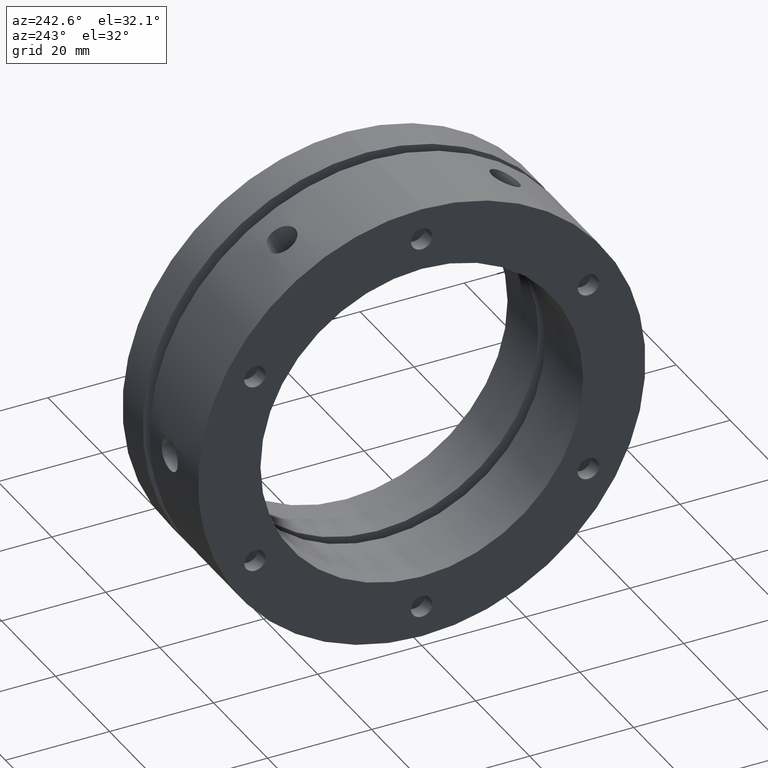
[diagram: clean part render]
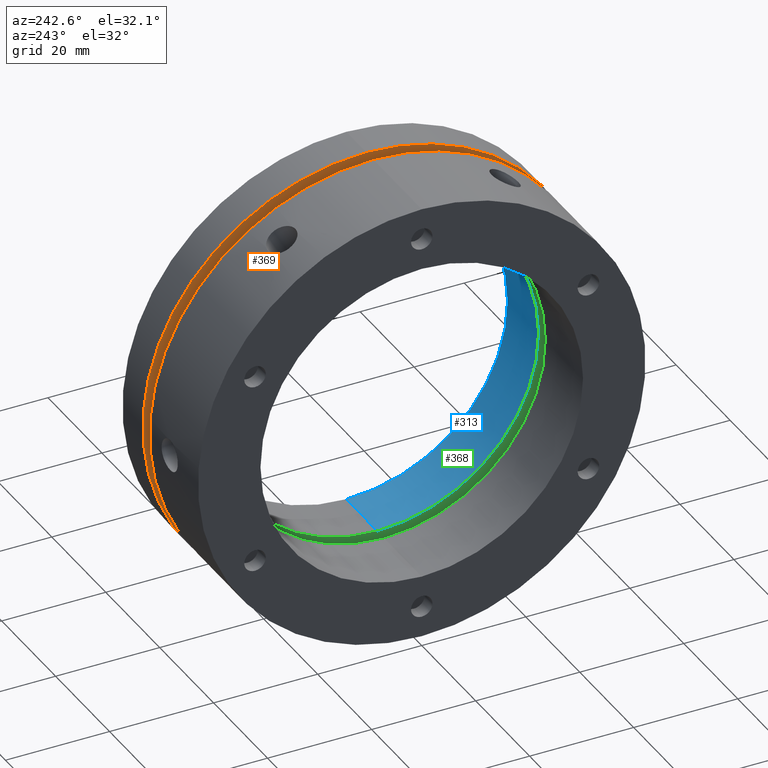
[diagram: same view with three faces highlighted in distinct colors, each labeled with its STEP entity id]
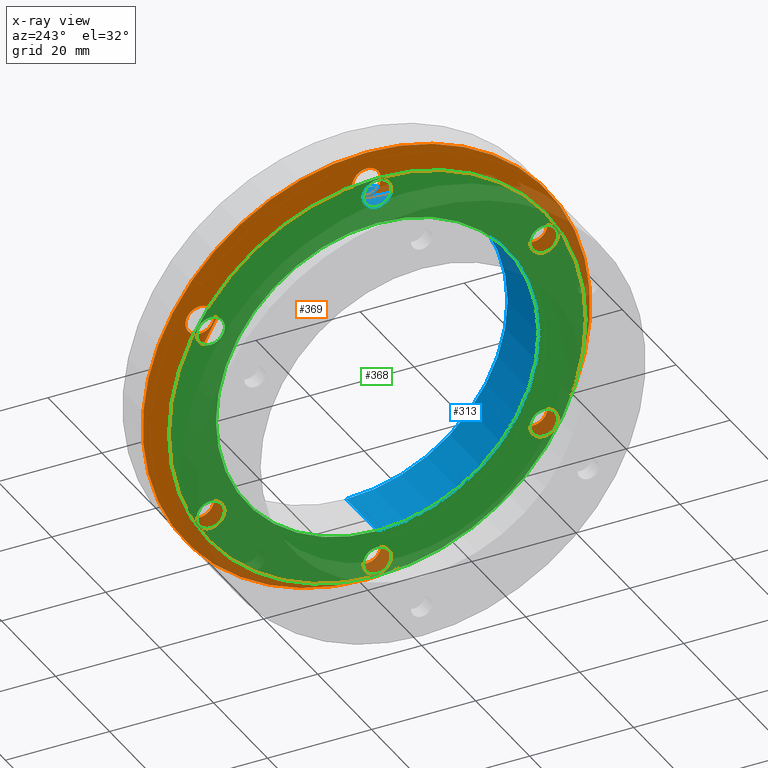
[diagram: x-ray of the same camera — body ghosted, the three highlighted faces saturated]
A machine part, auxiliary view with three faces highlighted in distinct colors.
The next image is the same camera in x-ray (body ghosted, the three faces saturated) — at least one of them is partly hidden behind the body in this view.
Their STEP definitions:

[orange] entity #369 — the highlighted planar face has unit normal (1, 0, 0).
#369 = ADVANCED_FACE ( 'NONE', ( #1775, #1779, #1776, #1778, #1777, #1780, #1781, #1782 ), #985, .F. ) ;
#505 = EDGE_CURVE ( 'NONE', #4217, #4211, #2020, .T. ) ;
#537 = EDGE_CURVE ( 'NONE', #4246, #4247, #2064, .T. ) ;
#541 = EDGE_CURVE ( 'NONE', #4250, #4253, #2073, .T. ) ;
#545 = EDGE_CURVE ( 'NONE', #4254, #4257, #2079, .T. ) ;
#549 = EDGE_CURVE ( 'NONE', #4258, #4261, #2085, .T. ) ;
#553 = EDGE_CURVE ( 'NONE', #4262, #4265, #2091, .T. ) ;
#557 = EDGE_CURVE ( 'NONE', #4266, #4269, #2097, .T. ) ;
#561 = EDGE_CURVE ( 'NONE', #4270, #4273, #2103, .T. ) ;
#982 = DIRECTION ( 'NONE',  ( 1.000000000000000000, -0.0000000000000000000, 0.0000000000000000000 ) ) ;
#984 = CARTESIAN_POINT ( 'NONE',  ( 20.49999999999999300, 38.50000000000000000, 0.0000000000000000000 ) ) ;
#985 = PLANE ( 'NONE',  #4632 ) ;
#987 = DIRECTION ( 'NONE',  ( 0.0000000000000000000, 0.0000000000000000000, -1.000000000000000000 ) ) ;
#1608 = CARTESIAN_POINT ( 'NONE',  ( 20.50000000000000000, 0.0000000000000000000, 0.0000000000000000000 ) ) ;
#1609 = DIRECTION ( 'NONE',  ( -1.000000000000000000, 0.0000000000000000000, 0.0000000000000000000 ) ) ;
#1610 = DIRECTION ( 'NONE',  ( 0.0000000000000000000, 0.0000000000000000000, 1.000000000000000000 ) ) ;
#1687 = CARTESIAN_POINT ( 'NONE',  ( 20.49999999999999300, 0.0000000000000000000, 37.00000000000002800 ) ) ;
#1688 = DIRECTION ( 'NONE',  ( -1.000000000000000000, -0.0000000000000000000, -0.0000000000000000000 ) ) ;
#1689 = DIRECTION ( 'NONE',  ( 0.0000000000000000000, 0.0000000000000000000, -1.000000000000000000 ) ) ;
#1697 = CARTESIAN_POINT ( 'NONE',  ( 20.49999999999999300, -32.04293994002425400, 18.50000000000001800 ) ) ;
#1698 = DIRECTION ( 'NONE',  ( -1.000000000000000000, -0.0000000000000000000, -0.0000000000000000000 ) ) ;
#1699 = DIRECTION ( 'NONE',  ( 0.0000000000000000000, 0.0000000000000000000, -1.000000000000000000 ) ) ;
#1706 = CARTESIAN_POINT ( 'NONE',  ( 20.49999999999999300, -32.04293994002426200, -18.50000000000000700 ) ) ;
#1707 = DIRECTION ( 'NONE',  ( -1.000000000000000000, -0.0000000000000000000, -0.0000000000000000000 ) ) ;
#1708 = DIRECTION ( 'NONE',  ( 0.0000000000000000000, 0.0000000000000000000, -1.000000000000000000 ) ) ;
#1775 = FACE_BOUND ( 'NONE', #4715, .T. ) ;
#1776 = FACE_BOUND ( 'NONE', #4733, .T. ) ;
#1777 = FACE_BOUND ( 'NONE', #4729, .T. ) ;
#1778 = FACE_BOUND ( 'NONE', #4741, .T. ) ;
#1779 = FACE_BOUND ( 'NONE', #4727, .T. ) ;
#1780 = FACE_BOUND ( 'NONE', #4716, .T. ) ;
#1781 = FACE_BOUND ( 'NONE', #4746, .T. ) ;
#1782 = FACE_OUTER_BOUND ( 'NONE', #4745, .T. ) ;
#2020 = CIRCLE ( 'NONE', #4695, 34.00000000000000700 ) ;
#2064 = CIRCLE ( 'NONE', #4711, 2.750000000000002700 ) ;
#2073 = CIRCLE ( 'NONE', #4713, 2.749999999999999100 ) ;
#2079 = CIRCLE ( 'NONE', #2506, 2.749999999999999100 ) ;
#2085 = CIRCLE ( 'NONE', #2508, 2.750000000000002700 ) ;
#2091 = CIRCLE ( 'NONE', #2510, 2.749999999999999100 ) ;
#2097 = CIRCLE ( 'NONE', #2512, 2.749999999999999100 ) ;
#2103 = CIRCLE ( 'NONE', #2514, 42.99999999999999300 ) ;
#2210 = CIRCLE ( 'NONE', #2578, 2.750000000000002700 ) ;
#2244 = CIRCLE ( 'NONE', #2579, 2.749999999999999100 ) ;
#2246 = CIRCLE ( 'NONE', #2577, 2.749999999999999100 ) ;
#2247 = CIRCLE ( 'NONE', #2576, 2.749999999999999100 ) ;
#2249 = CIRCLE ( 'NONE', #2575, 42.99999999999999300 ) ;
#2251 = CIRCLE ( 'NONE', #2581, 2.750000000000002700 ) ;
#2252 = CIRCLE ( 'NONE', #2580, 2.749999999999999100 ) ;
#2261 = CIRCLE ( 'NONE', #2590, 34.00000000000000700 ) ;
#2506 = AXIS2_PLACEMENT_3D ( 'NONE', #1706, #1707, #1708 ) ;
#2508 = AXIS2_PLACEMENT_3D ( 'NONE', #2737, #2738, #2739 ) ;
#2510 = AXIS2_PLACEMENT_3D ( 'NONE', #2747, #2748, #2749 ) ;
#2512 = AXIS2_PLACEMENT_3D ( 'NONE', #2757, #2758, #2759 ) ;
#2514 = AXIS2_PLACEMENT_3D ( 'NONE', #2768, #2769, #2770 ) ;
#2575 = AXIS2_PLACEMENT_3D ( 'NONE', #3227, #3228, #3229 ) ;
#2576 = AXIS2_PLACEMENT_3D ( 'NONE', #3230, #3231, #3232 ) ;
#2577 = AXIS2_PLACEMENT_3D ( 'NONE', #3233, #3234, #3235 ) ;
#2578 = AXIS2_PLACEMENT_3D ( 'NONE', #3236, #3237, #3238 ) ;
#2579 = AXIS2_PLACEMENT_3D ( 'NONE', #3239, #3240, #3241 ) ;
#2580 = AXIS2_PLACEMENT_3D ( 'NONE', #3242, #3243, #3244 ) ;
#2581 = AXIS2_PLACEMENT_3D ( 'NONE', #3245, #3246, #3247 ) ;
#2590 = AXIS2_PLACEMENT_3D ( 'NONE', #3272, #3273, #3274 ) ;
#2737 = CARTESIAN_POINT ( 'NONE',  ( 20.49999999999999300, -6.661337999999999900E-015, -37.00000000000002800 ) ) ;
#2738 = DIRECTION ( 'NONE',  ( -1.000000000000000000, -0.0000000000000000000, -0.0000000000000000000 ) ) ;
#2739 = DIRECTION ( 'NONE',  ( 0.0000000000000000000, 0.0000000000000000000, -1.000000000000000000 ) ) ;
#2747 = CARTESIAN_POINT ( 'NONE',  ( 20.49999999999999300, 32.04293994002424000, -18.50000000000003600 ) ) ;
#2748 = DIRECTION ( 'NONE',  ( -1.000000000000000000, -0.0000000000000000000, -0.0000000000000000000 ) ) ;
#2749 = DIRECTION ( 'NONE',  ( 0.0000000000000000000, 0.0000000000000000000, -1.000000000000000000 ) ) ;
#2757 = CARTESIAN_POINT ( 'NONE',  ( 20.49999999999999300, 32.04293994002427600, 18.49999999999999300 ) ) ;
#2758 = DIRECTION ( 'NONE',  ( -1.000000000000000000, -0.0000000000000000000, -0.0000000000000000000 ) ) ;
#2759 = DIRECTION ( 'NONE',  ( 0.0000000000000000000, 0.0000000000000000000, -1.000000000000000000 ) ) ;
#2768 = CARTESIAN_POINT ( 'NONE',  ( 20.49999999999998900, 0.0000000000000000000, 0.0000000000000000000 ) ) ;
#2769 = DIRECTION ( 'NONE',  ( 1.000000000000000000, 0.0000000000000000000, 0.0000000000000000000 ) ) ;
#2770 = DIRECTION ( 'NONE',  ( 0.0000000000000000000, 0.0000000000000000000, -1.000000000000000000 ) ) ;
#3099 = CARTESIAN_POINT ( 'NONE',  ( 20.50000000000000000, 4.163799117101001300E-015, -34.00000000000000700 ) ) ;
#3105 = CARTESIAN_POINT ( 'NONE',  ( 20.50000000000000000, 0.0000000000000000000, 34.00000000000000700 ) ) ;
#3134 = CARTESIAN_POINT ( 'NONE',  ( 20.49999999999999300, 0.0000000000000000000, 34.25000000000002100 ) ) ;
#3135 = CARTESIAN_POINT ( 'NONE',  ( 20.49999999999999300, 3.367778697655217600E-016, 39.75000000000002800 ) ) ;
#3138 = CARTESIAN_POINT ( 'NONE',  ( 20.49999999999999300, -32.04293994002425400, 15.75000000000001800 ) ) ;
#3141 = CARTESIAN_POINT ( 'NONE',  ( 20.49999999999999300, -32.04293994002425400, 21.25000000000001400 ) ) ;
#3142 = CARTESIAN_POINT ( 'NONE',  ( 20.49999999999999300, -32.04293994002426200, -21.25000000000000400 ) ) ;
#3145 = CARTESIAN_POINT ( 'NONE',  ( 20.49999999999999300, -32.04293994002426200, -15.75000000000000700 ) ) ;
#3146 = CARTESIAN_POINT ( 'NONE',  ( 20.49999999999999300, -6.661337999999999900E-015, -39.75000000000002800 ) ) ;
#3149 = CARTESIAN_POINT ( 'NONE',  ( 20.49999999999999300, -6.324560130234478200E-015, -34.25000000000002100 ) ) ;
#3150 = CARTESIAN_POINT ( 'NONE',  ( 20.49999999999999300, 32.04293994002424000, -21.25000000000003200 ) ) ;
#3153 = CARTESIAN_POINT ( 'NONE',  ( 20.49999999999999300, 32.04293994002424000, -15.75000000000003600 ) ) ;
#3154 = CARTESIAN_POINT ( 'NONE',  ( 20.49999999999999300, 32.04293994002427600, 15.74999999999999300 ) ) ;
#3157 = CARTESIAN_POINT ( 'NONE',  ( 20.49999999999999300, 32.04293994002427600, 21.24999999999999300 ) ) ;
#3158 = CARTESIAN_POINT ( 'NONE',  ( 20.49999999999998900, 0.0000000000000000000, -42.99999999999999300 ) ) ;
#3161 = CARTESIAN_POINT ( 'NONE',  ( 20.49999999999998900, 5.265981236333616900E-015, 42.99999999999999300 ) ) ;
#3227 = CARTESIAN_POINT ( 'NONE',  ( 20.49999999999998900, 0.0000000000000000000, 0.0000000000000000000 ) ) ;
#3228 = DIRECTION ( 'NONE',  ( 1.000000000000000000, 0.0000000000000000000, 0.0000000000000000000 ) ) ;
#3229 = DIRECTION ( 'NONE',  ( 0.0000000000000000000, 0.0000000000000000000, -1.000000000000000000 ) ) ;
#3230 = CARTESIAN_POINT ( 'NONE',  ( 20.49999999999999300, 32.04293994002427600, 18.49999999999999300 ) ) ;
#3231 = DIRECTION ( 'NONE',  ( -1.000000000000000000, -0.0000000000000000000, -0.0000000000000000000 ) ) ;
#3232 = DIRECTION ( 'NONE',  ( 0.0000000000000000000, 0.0000000000000000000, -1.000000000000000000 ) ) ;
#3233 = CARTESIAN_POINT ( 'NONE',  ( 20.49999999999999300, 32.04293994002424000, -18.50000000000003600 ) ) ;
#3234 = DIRECTION ( 'NONE',  ( -1.000000000000000000, -0.0000000000000000000, -0.0000000000000000000 ) ) ;
#3235 = DIRECTION ( 'NONE',  ( 0.0000000000000000000, 0.0000000000000000000, -1.000000000000000000 ) ) ;
#3236 = CARTESIAN_POINT ( 'NONE',  ( 20.49999999999999300, -6.661337999999999900E-015, -37.00000000000002800 ) ) ;
#3237 = DIRECTION ( 'NONE',  ( -1.000000000000000000, -0.0000000000000000000, -0.0000000000000000000 ) ) ;
#3238 = DIRECTION ( 'NONE',  ( 0.0000000000000000000, 0.0000000000000000000, -1.000000000000000000 ) ) ;
#3239 = CARTESIAN_POINT ( 'NONE',  ( 20.49999999999999300, -32.04293994002426200, -18.50000000000000700 ) ) ;
#3240 = DIRECTION ( 'NONE',  ( -1.000000000000000000, -0.0000000000000000000, -0.0000000000000000000 ) ) ;
#3241 = DIRECTION ( 'NONE',  ( 0.0000000000000000000, 0.0000000000000000000, -1.000000000000000000 ) ) ;
#3242 = CARTESIAN_POINT ( 'NONE',  ( 20.49999999999999300, -32.04293994002425400, 18.50000000000001800 ) ) ;
#3243 = DIRECTION ( 'NONE',  ( -1.000000000000000000, -0.0000000000000000000, -0.0000000000000000000 ) ) ;
#3244 = DIRECTION ( 'NONE',  ( 0.0000000000000000000, 0.0000000000000000000, -1.000000000000000000 ) ) ;
#3245 = CARTESIAN_POINT ( 'NONE',  ( 20.49999999999999300, 0.0000000000000000000, 37.00000000000002800 ) ) ;
#3246 = DIRECTION ( 'NONE',  ( -1.000000000000000000, -0.0000000000000000000, -0.0000000000000000000 ) ) ;
#3247 = DIRECTION ( 'NONE',  ( 0.0000000000000000000, 0.0000000000000000000, -1.000000000000000000 ) ) ;
#3272 = CARTESIAN_POINT ( 'NONE',  ( 20.50000000000000000, 0.0000000000000000000, 0.0000000000000000000 ) ) ;
#3273 = DIRECTION ( 'NONE',  ( -1.000000000000000000, 0.0000000000000000000, 0.0000000000000000000 ) ) ;
#3274 = DIRECTION ( 'NONE',  ( 0.0000000000000000000, 0.0000000000000000000, 1.000000000000000000 ) ) ;
#3961 = ORIENTED_EDGE ( 'NONE', *, *, #505, .F. ) ;
#3962 = ORIENTED_EDGE ( 'NONE', *, *, #4498, .F. ) ;
#3963 = ORIENTED_EDGE ( 'NONE', *, *, #537, .F. ) ;
#3964 = ORIENTED_EDGE ( 'NONE', *, *, #4489, .F. ) ;
#3965 = ORIENTED_EDGE ( 'NONE', *, *, #541, .F. ) ;
#3966 = ORIENTED_EDGE ( 'NONE', *, *, #4488, .F. ) ;
#3967 = ORIENTED_EDGE ( 'NONE', *, *, #545, .F. ) ;
#3968 = ORIENTED_EDGE ( 'NONE', *, *, #4487, .F. ) ;
#3969 = ORIENTED_EDGE ( 'NONE', *, *, #549, .F. ) ;
#3970 = ORIENTED_EDGE ( 'NONE', *, *, #4486, .F. ) ;
#3971 = ORIENTED_EDGE ( 'NONE', *, *, #553, .F. ) ;
#3972 = ORIENTED_EDGE ( 'NONE', *, *, #4485, .F. ) ;
#3973 = ORIENTED_EDGE ( 'NONE', *, *, #557, .F. ) ;
#3974 = ORIENTED_EDGE ( 'NONE', *, *, #4484, .F. ) ;
#3975 = ORIENTED_EDGE ( 'NONE', *, *, #561, .F. ) ;
#3976 = ORIENTED_EDGE ( 'NONE', *, *, #4483, .F. ) ;
#4211 = VERTEX_POINT ( 'NONE', #3099 ) ;
#4217 = VERTEX_POINT ( 'NONE', #3105 ) ;
#4246 = VERTEX_POINT ( 'NONE', #3134 ) ;
#4247 = VERTEX_POINT ( 'NONE', #3135 ) ;
#4250 = VERTEX_POINT ( 'NONE', #3138 ) ;
#4253 = VERTEX_POINT ( 'NONE', #3141 ) ;
#4254 = VERTEX_POINT ( 'NONE', #3142 ) ;
#4257 = VERTEX_POINT ( 'NONE', #3145 ) ;
#4258 = VERTEX_POINT ( 'NONE', #3146 ) ;
#4261 = VERTEX_POINT ( 'NONE', #3149 ) ;
#4262 = VERTEX_POINT ( 'NONE', #3150 ) ;
#4265 = VERTEX_POINT ( 'NONE', #3153 ) ;
#4266 = VERTEX_POINT ( 'NONE', #3154 ) ;
#4269 = VERTEX_POINT ( 'NONE', #3157 ) ;
#4270 = VERTEX_POINT ( 'NONE', #3158 ) ;
#4273 = VERTEX_POINT ( 'NONE', #3161 ) ;
#4483 = EDGE_CURVE ( 'NONE', #4273, #4270, #2249, .T. ) ;
#4484 = EDGE_CURVE ( 'NONE', #4269, #4266, #2247, .T. ) ;
#4485 = EDGE_CURVE ( 'NONE', #4265, #4262, #2246, .T. ) ;
#4486 = EDGE_CURVE ( 'NONE', #4261, #4258, #2210, .T. ) ;
#4487 = EDGE_CURVE ( 'NONE', #4257, #4254, #2244, .T. ) ;
#4488 = EDGE_CURVE ( 'NONE', #4253, #4250, #2252, .T. ) ;
#4489 = EDGE_CURVE ( 'NONE', #4247, #4246, #2251, .T. ) ;
#4498 = EDGE_CURVE ( 'NONE', #4211, #4217, #2261, .T. ) ;
#4632 = AXIS2_PLACEMENT_3D ( 'NONE', #984, #982, #987 ) ;
#4695 = AXIS2_PLACEMENT_3D ( 'NONE', #1608, #1609, #1610 ) ;
#4711 = AXIS2_PLACEMENT_3D ( 'NONE', #1687, #1688, #1689 ) ;
#4713 = AXIS2_PLACEMENT_3D ( 'NONE', #1697, #1698, #1699 ) ;
#4715 = EDGE_LOOP ( 'NONE', ( #3961, #3962 ) ) ;
#4716 = EDGE_LOOP ( 'NONE', ( #3971, #3972 ) ) ;
#4727 = EDGE_LOOP ( 'NONE', ( #3963, #3964 ) ) ;
#4729 = EDGE_LOOP ( 'NONE', ( #3969, #3970 ) ) ;
#4733 = EDGE_LOOP ( 'NONE', ( #3965, #3966 ) ) ;
#4741 = EDGE_LOOP ( 'NONE', ( #3967, #3968 ) ) ;
#4745 = EDGE_LOOP ( 'NONE', ( #3975, #3976 ) ) ;
#4746 = EDGE_LOOP ( 'NONE', ( #3973, #3974 ) ) ;

[blue] entity #313 — the highlighted cylindrical surface (partial cylindrical patch) has radius 31 mm, axis along (1, 0, 0).
#102 = EDGE_LOOP ( 'NONE', ( #3721, #3722, #3723, #3724 ) ) ;
#313 = ADVANCED_FACE ( 'NONE', ( #4413 ), #4422, .F. ) ;
#565 = EDGE_CURVE ( 'NONE', #4274, #4275, #2106, .T. ) ;
#566 = EDGE_CURVE ( 'NONE', #4275, #4280, #2110, .T. ) ;
#567 = EDGE_CURVE ( 'NONE', #4279, #4280, #2113, .T. ) ;
#568 = EDGE_CURVE ( 'NONE', #4274, #4279, #2112, .T. ) ;
#806 = DIRECTION ( 'NONE',  ( 0.0000000000000000000, 0.0000000000000000000, -1.000000000000000000 ) ) ;
#808 = DIRECTION ( 'NONE',  ( 1.000000000000000000, 0.0000000000000000000, 0.0000000000000000000 ) ) ;
#810 = CARTESIAN_POINT ( 'NONE',  ( 13.99999999999999300, 0.0000000000000000000, 0.0000000000000000000 ) ) ;
#2106 = CIRCLE ( 'NONE', #2516, 31.00000000000000000 ) ;
#2110 = LINE ( 'NONE', #2776, #2114 ) ;
#2112 = LINE ( 'NONE', #2780, #2117 ) ;
#2113 = CIRCLE ( 'NONE', #2517, 31.00000000000000000 ) ;
#2114 = VECTOR ( 'NONE', #2774, 1000.000000000000000 ) ;
#2117 = VECTOR ( 'NONE', #2775, 1000.000000000000000 ) ;
#2516 = AXIS2_PLACEMENT_3D ( 'NONE', #2777, #2778, #2779 ) ;
#2517 = AXIS2_PLACEMENT_3D ( 'NONE', #2781, #2782, #2783 ) ;
#2774 = DIRECTION ( 'NONE',  ( 1.000000000000000000, 0.0000000000000000000, 0.0000000000000000000 ) ) ;
#2775 = DIRECTION ( 'NONE',  ( 1.000000000000000000, 0.0000000000000000000, 0.0000000000000000000 ) ) ;
#2776 = CARTESIAN_POINT ( 'NONE',  ( 13.99999999999999300, 3.796405077356795100E-015, 31.00000000000000000 ) ) ;
#2777 = CARTESIAN_POINT ( 'NONE',  ( 16.50000000000000400, 0.0000000000000000000, 0.0000000000000000000 ) ) ;
#2778 = DIRECTION ( 'NONE',  ( -1.000000000000000000, -0.0000000000000000000, -0.0000000000000000000 ) ) ;
#2779 = DIRECTION ( 'NONE',  ( 0.0000000000000000000, 0.0000000000000000000, -1.000000000000000000 ) ) ;
#2780 = CARTESIAN_POINT ( 'NONE',  ( 13.99999999999999300, 0.0000000000000000000, -31.00000000000000000 ) ) ;
#2781 = CARTESIAN_POINT ( 'NONE',  ( 27.99999999999999300, 0.0000000000000000000, 0.0000000000000000000 ) ) ;
#2782 = DIRECTION ( 'NONE',  ( -1.000000000000000000, -0.0000000000000000000, -0.0000000000000000000 ) ) ;
#2783 = DIRECTION ( 'NONE',  ( 0.0000000000000000000, 0.0000000000000000000, -1.000000000000000000 ) ) ;
#3162 = CARTESIAN_POINT ( 'NONE',  ( 16.50000000000000400, 0.0000000000000000000, -31.00000000000000000 ) ) ;
#3163 = CARTESIAN_POINT ( 'NONE',  ( 16.50000000000000400, 3.796405077356795100E-015, 31.00000000000000000 ) ) ;
#3167 = CARTESIAN_POINT ( 'NONE',  ( 27.99999999999999300, 0.0000000000000000000, -31.00000000000000000 ) ) ;
#3168 = CARTESIAN_POINT ( 'NONE',  ( 27.99999999999999300, 3.796405077356795100E-015, 31.00000000000000000 ) ) ;
#3721 = ORIENTED_EDGE ( 'NONE', *, *, #565, .T. ) ;
#3722 = ORIENTED_EDGE ( 'NONE', *, *, #566, .T. ) ;
#3723 = ORIENTED_EDGE ( 'NONE', *, *, #567, .F. ) ;
#3724 = ORIENTED_EDGE ( 'NONE', *, *, #568, .F. ) ;
#4274 = VERTEX_POINT ( 'NONE', #3162 ) ;
#4275 = VERTEX_POINT ( 'NONE', #3163 ) ;
#4279 = VERTEX_POINT ( 'NONE', #3167 ) ;
#4280 = VERTEX_POINT ( 'NONE', #3168 ) ;
#4413 = FACE_OUTER_BOUND ( 'NONE', #102, .T. ) ;
#4422 = CYLINDRICAL_SURFACE ( 'NONE', #4578, 31.00000000000000000 ) ;
#4578 = AXIS2_PLACEMENT_3D ( 'NONE', #810, #808, #806 ) ;

[green] entity #368 — the highlighted planar face has unit normal (1, 0, 0).
#190 = EDGE_LOOP ( 'NONE', ( #3945, #3946 ) ) ;
#194 = EDGE_LOOP ( 'NONE', ( #3949, #3950 ) ) ;
#214 = EDGE_LOOP ( 'NONE', ( #3947, #3948 ) ) ;
#223 = EDGE_LOOP ( 'NONE', ( #3951, #3952 ) ) ;
#236 = EDGE_LOOP ( 'NONE', ( #3957, #3958 ) ) ;
#239 = EDGE_LOOP ( 'NONE', ( #3955, #3956 ) ) ;
#252 = EDGE_LOOP ( 'NONE', ( #3953, #3954 ) ) ;
#368 = ADVANCED_FACE ( 'NONE', ( #1763, #1771, #1767, #1765, #1769, #1772, #1773, #1774 ), #981, .F. ) ;
#509 = EDGE_CURVE ( 'NONE', #4212, #4219, #2022, .T. ) ;
#513 = EDGE_CURVE ( 'NONE', #4222, #4223, #2029, .T. ) ;
#517 = EDGE_CURVE ( 'NONE', #4226, #4227, #2035, .T. ) ;
#521 = EDGE_CURVE ( 'NONE', #4230, #4231, #2041, .T. ) ;
#525 = EDGE_CURVE ( 'NONE', #4234, #4235, #2047, .T. ) ;
#529 = EDGE_CURVE ( 'NONE', #4238, #4239, #2053, .T. ) ;
#533 = EDGE_CURVE ( 'NONE', #4242, #4243, #2059, .T. ) ;
#565 = EDGE_CURVE ( 'NONE', #4274, #4275, #2106, .T. ) ;
#978 = DIRECTION ( 'NONE',  ( 1.000000000000000000, -0.0000000000000000000, 0.0000000000000000000 ) ) ;
#980 = CARTESIAN_POINT ( 'NONE',  ( 16.50000000000000400, 20.00000000000000000, 0.0000000000000000000 ) ) ;
#981 = PLANE ( 'NONE',  #4631 ) ;
#983 = DIRECTION ( 'NONE',  ( 0.0000000000000000000, 0.0000000000000000000, -1.000000000000000000 ) ) ;
#1617 = CARTESIAN_POINT ( 'NONE',  ( 16.49999999999998900, 0.0000000000000000000, 37.00000000000002800 ) ) ;
#1618 = DIRECTION ( 'NONE',  ( 1.000000000000000000, 0.0000000000000000000, 0.0000000000000000000 ) ) ;
#1619 = DIRECTION ( 'NONE',  ( 0.0000000000000000000, 0.0000000000000000000, -1.000000000000000000 ) ) ;
#1627 = CARTESIAN_POINT ( 'NONE',  ( 16.49999999999998900, -32.04293994002425400, 18.50000000000001800 ) ) ;
#1628 = DIRECTION ( 'NONE',  ( 1.000000000000000000, 0.0000000000000000000, 0.0000000000000000000 ) ) ;
#1629 = DIRECTION ( 'NONE',  ( 0.0000000000000000000, 0.0000000000000000000, -1.000000000000000000 ) ) ;
#1637 = CARTESIAN_POINT ( 'NONE',  ( 16.49999999999998900, -32.04293994002426200, -18.50000000000000700 ) ) ;
#1638 = DIRECTION ( 'NONE',  ( 1.000000000000000000, 0.0000000000000000000, 0.0000000000000000000 ) ) ;
#1639 = DIRECTION ( 'NONE',  ( 0.0000000000000000000, 0.0000000000000000000, -1.000000000000000000 ) ) ;
#1647 = CARTESIAN_POINT ( 'NONE',  ( 16.49999999999998900, -6.661337999999999900E-015, -37.00000000000002800 ) ) ;
#1648 = DIRECTION ( 'NONE',  ( 1.000000000000000000, 0.0000000000000000000, 0.0000000000000000000 ) ) ;
#1649 = DIRECTION ( 'NONE',  ( 0.0000000000000000000, 0.0000000000000000000, -1.000000000000000000 ) ) ;
#1657 = CARTESIAN_POINT ( 'NONE',  ( 16.49999999999998900, 32.04293994002424000, -18.50000000000003600 ) ) ;
#1658 = DIRECTION ( 'NONE',  ( 1.000000000000000000, 0.0000000000000000000, 0.0000000000000000000 ) ) ;
#1659 = DIRECTION ( 'NONE',  ( 0.0000000000000000000, 0.0000000000000000000, -1.000000000000000000 ) ) ;
#1667 = CARTESIAN_POINT ( 'NONE',  ( 16.49999999999998900, 32.04293994002427600, 18.49999999999999300 ) ) ;
#1668 = DIRECTION ( 'NONE',  ( 1.000000000000000000, 0.0000000000000000000, 0.0000000000000000000 ) ) ;
#1669 = DIRECTION ( 'NONE',  ( 0.0000000000000000000, 0.0000000000000000000, -1.000000000000000000 ) ) ;
#1678 = CARTESIAN_POINT ( 'NONE',  ( 16.50000000000000000, 0.0000000000000000000, 0.0000000000000000000 ) ) ;
#1679 = DIRECTION ( 'NONE',  ( 1.000000000000000000, -0.0000000000000000000, -0.0000000000000000000 ) ) ;
#1680 = DIRECTION ( 'NONE',  ( 0.0000000000000000000, 0.0000000000000000000, 1.000000000000000000 ) ) ;
#1763 = FACE_BOUND ( 'NONE', #190, .T. ) ;
#1765 = FACE_BOUND ( 'NONE', #223, .T. ) ;
#1767 = FACE_BOUND ( 'NONE', #194, .T. ) ;
#1769 = FACE_BOUND ( 'NONE', #252, .T. ) ;
#1771 = FACE_BOUND ( 'NONE', #214, .T. ) ;
#1772 = FACE_BOUND ( 'NONE', #239, .T. ) ;
#1773 = FACE_BOUND ( 'NONE', #236, .T. ) ;
#1774 = FACE_OUTER_BOUND ( 'NONE', #4725, .T. ) ;
#2022 = CIRCLE ( 'NONE', #4697, 2.750000000000002700 ) ;
#2029 = CIRCLE ( 'NONE', #4699, 2.749999999999999100 ) ;
#2035 = CIRCLE ( 'NONE', #4701, 2.749999999999999100 ) ;
#2041 = CIRCLE ( 'NONE', #4703, 2.750000000000002700 ) ;
#2047 = CIRCLE ( 'NONE', #4705, 2.749999999999999100 ) ;
#2053 = CIRCLE ( 'NONE', #4707, 2.749999999999999100 ) ;
#2059 = CIRCLE ( 'NONE', #4709, 40.00000000000000000 ) ;
#2106 = CIRCLE ( 'NONE', #2516, 31.00000000000000000 ) ;
#2248 = CIRCLE ( 'NONE', #2574, 31.00000000000000000 ) ;
#2253 = CIRCLE ( 'NONE', #2582, 40.00000000000000000 ) ;
#2255 = CIRCLE ( 'NONE', #2584, 2.750000000000002700 ) ;
#2256 = CIRCLE ( 'NONE', #2585, 2.749999999999999100 ) ;
#2257 = CIRCLE ( 'NONE', #2586, 2.749999999999999100 ) ;
#2258 = CIRCLE ( 'NONE', #2587, 2.750000000000002700 ) ;
#2259 = CIRCLE ( 'NONE', #2588, 2.749999999999999100 ) ;
#2260 = CIRCLE ( 'NONE', #2589, 2.749999999999999100 ) ;
#2516 = AXIS2_PLACEMENT_3D ( 'NONE', #2777, #2778, #2779 ) ;
#2574 = AXIS2_PLACEMENT_3D ( 'NONE', #3224, #3225, #3226 ) ;
#2582 = AXIS2_PLACEMENT_3D ( 'NONE', #3248, #3249, #3250 ) ;
#2584 = AXIS2_PLACEMENT_3D ( 'NONE', #3254, #3255, #3256 ) ;
#2585 = AXIS2_PLACEMENT_3D ( 'NONE', #3257, #3258, #3259 ) ;
#2586 = AXIS2_PLACEMENT_3D ( 'NONE', #3260, #3261, #3262 ) ;
#2587 = AXIS2_PLACEMENT_3D ( 'NONE', #3263, #3264, #3265 ) ;
#2588 = AXIS2_PLACEMENT_3D ( 'NONE', #3266, #3267, #3268 ) ;
#2589 = AXIS2_PLACEMENT_3D ( 'NONE', #3269, #3270, #3271 ) ;
#2777 = CARTESIAN_POINT ( 'NONE',  ( 16.50000000000000400, 0.0000000000000000000, 0.0000000000000000000 ) ) ;
#2778 = DIRECTION ( 'NONE',  ( -1.000000000000000000, -0.0000000000000000000, -0.0000000000000000000 ) ) ;
#2779 = DIRECTION ( 'NONE',  ( 0.0000000000000000000, 0.0000000000000000000, -1.000000000000000000 ) ) ;
#3100 = CARTESIAN_POINT ( 'NONE',  ( 16.49999999999998900, 3.367778697655217600E-016, 39.75000000000002800 ) ) ;
#3107 = CARTESIAN_POINT ( 'NONE',  ( 16.49999999999998900, 0.0000000000000000000, 34.25000000000002100 ) ) ;
#3110 = CARTESIAN_POINT ( 'NONE',  ( 16.49999999999998900, -32.04293994002425400, 21.25000000000001400 ) ) ;
#3111 = CARTESIAN_POINT ( 'NONE',  ( 16.49999999999998900, -32.04293994002425400, 15.75000000000001800 ) ) ;
#3114 = CARTESIAN_POINT ( 'NONE',  ( 16.49999999999998900, -32.04293994002426200, -15.75000000000000700 ) ) ;
#3115 = CARTESIAN_POINT ( 'NONE',  ( 16.49999999999998900, -32.04293994002426200, -21.25000000000000400 ) ) ;
#3118 = CARTESIAN_POINT ( 'NONE',  ( 16.49999999999998900, -6.324560130234478200E-015, -34.25000000000002100 ) ) ;
#3119 = CARTESIAN_POINT ( 'NONE',  ( 16.49999999999998900, -6.661337999999999900E-015, -39.75000000000002800 ) ) ;
#3122 = CARTESIAN_POINT ( 'NONE',  ( 16.49999999999998900, 32.04293994002424000, -15.75000000000003600 ) ) ;
#3123 = CARTESIAN_POINT ( 'NONE',  ( 16.49999999999998900, 32.04293994002424000, -21.25000000000003200 ) ) ;
#3126 = CARTESIAN_POINT ( 'NONE',  ( 16.49999999999998900, 32.04293994002427600, 21.24999999999999300 ) ) ;
#3127 = CARTESIAN_POINT ( 'NONE',  ( 16.49999999999998900, 32.04293994002427600, 15.74999999999999300 ) ) ;
#3130 = CARTESIAN_POINT ( 'NONE',  ( 16.50000000000000000, 0.0000000000000000000, 40.00000000000000000 ) ) ;
#3131 = CARTESIAN_POINT ( 'NONE',  ( 16.50000000000000000, 4.898587196589413000E-015, -40.00000000000000000 ) ) ;
#3162 = CARTESIAN_POINT ( 'NONE',  ( 16.50000000000000400, 0.0000000000000000000, -31.00000000000000000 ) ) ;
#3163 = CARTESIAN_POINT ( 'NONE',  ( 16.50000000000000400, 3.796405077356795100E-015, 31.00000000000000000 ) ) ;
#3224 = CARTESIAN_POINT ( 'NONE',  ( 16.50000000000000400, 0.0000000000000000000, 0.0000000000000000000 ) ) ;
#3225 = DIRECTION ( 'NONE',  ( -1.000000000000000000, -0.0000000000000000000, -0.0000000000000000000 ) ) ;
#3226 = DIRECTION ( 'NONE',  ( 0.0000000000000000000, 0.0000000000000000000, -1.000000000000000000 ) ) ;
#3248 = CARTESIAN_POINT ( 'NONE',  ( 16.50000000000000000, 0.0000000000000000000, 0.0000000000000000000 ) ) ;
#3249 = DIRECTION ( 'NONE',  ( 1.000000000000000000, -0.0000000000000000000, -0.0000000000000000000 ) ) ;
#3250 = DIRECTION ( 'NONE',  ( 0.0000000000000000000, 0.0000000000000000000, 1.000000000000000000 ) ) ;
#3254 = CARTESIAN_POINT ( 'NONE',  ( 16.49999999999998900, 0.0000000000000000000, 37.00000000000002800 ) ) ;
#3255 = DIRECTION ( 'NONE',  ( 1.000000000000000000, 0.0000000000000000000, 0.0000000000000000000 ) ) ;
#3256 = DIRECTION ( 'NONE',  ( 0.0000000000000000000, 0.0000000000000000000, -1.000000000000000000 ) ) ;
#3257 = CARTESIAN_POINT ( 'NONE',  ( 16.49999999999998900, -32.04293994002425400, 18.50000000000001800 ) ) ;
#3258 = DIRECTION ( 'NONE',  ( 1.000000000000000000, 0.0000000000000000000, 0.0000000000000000000 ) ) ;
#3259 = DIRECTION ( 'NONE',  ( 0.0000000000000000000, 0.0000000000000000000, -1.000000000000000000 ) ) ;
#3260 = CARTESIAN_POINT ( 'NONE',  ( 16.49999999999998900, -32.04293994002426200, -18.50000000000000700 ) ) ;
#3261 = DIRECTION ( 'NONE',  ( 1.000000000000000000, 0.0000000000000000000, 0.0000000000000000000 ) ) ;
#3262 = DIRECTION ( 'NONE',  ( 0.0000000000000000000, 0.0000000000000000000, -1.000000000000000000 ) ) ;
#3263 = CARTESIAN_POINT ( 'NONE',  ( 16.49999999999998900, -6.661337999999999900E-015, -37.00000000000002800 ) ) ;
#3264 = DIRECTION ( 'NONE',  ( 1.000000000000000000, 0.0000000000000000000, 0.0000000000000000000 ) ) ;
#3265 = DIRECTION ( 'NONE',  ( 0.0000000000000000000, 0.0000000000000000000, -1.000000000000000000 ) ) ;
#3266 = CARTESIAN_POINT ( 'NONE',  ( 16.49999999999998900, 32.04293994002424000, -18.50000000000003600 ) ) ;
#3267 = DIRECTION ( 'NONE',  ( 1.000000000000000000, 0.0000000000000000000, 0.0000000000000000000 ) ) ;
#3268 = DIRECTION ( 'NONE',  ( 0.0000000000000000000, 0.0000000000000000000, -1.000000000000000000 ) ) ;
#3269 = CARTESIAN_POINT ( 'NONE',  ( 16.49999999999998900, 32.04293994002427600, 18.49999999999999300 ) ) ;
#3270 = DIRECTION ( 'NONE',  ( 1.000000000000000000, 0.0000000000000000000, 0.0000000000000000000 ) ) ;
#3271 = DIRECTION ( 'NONE',  ( 0.0000000000000000000, 0.0000000000000000000, -1.000000000000000000 ) ) ;
#3945 = ORIENTED_EDGE ( 'NONE', *, *, #565, .F. ) ;
#3946 = ORIENTED_EDGE ( 'NONE', *, *, #4482, .F. ) ;
#3947 = ORIENTED_EDGE ( 'NONE', *, *, #4492, .T. ) ;
#3948 = ORIENTED_EDGE ( 'NONE', *, *, #509, .T. ) ;
#3949 = ORIENTED_EDGE ( 'NONE', *, *, #4493, .T. ) ;
#3950 = ORIENTED_EDGE ( 'NONE', *, *, #513, .T. ) ;
#3951 = ORIENTED_EDGE ( 'NONE', *, *, #4494, .T. ) ;
#3952 = ORIENTED_EDGE ( 'NONE', *, *, #517, .T. ) ;
#3953 = ORIENTED_EDGE ( 'NONE', *, *, #4495, .T. ) ;
#3954 = ORIENTED_EDGE ( 'NONE', *, *, #521, .T. ) ;
#3955 = ORIENTED_EDGE ( 'NONE', *, *, #4496, .T. ) ;
#3956 = ORIENTED_EDGE ( 'NONE', *, *, #525, .T. ) ;
#3957 = ORIENTED_EDGE ( 'NONE', *, *, #4497, .T. ) ;
#3958 = ORIENTED_EDGE ( 'NONE', *, *, #529, .T. ) ;
#3959 = ORIENTED_EDGE ( 'NONE', *, *, #533, .F. ) ;
#3960 = ORIENTED_EDGE ( 'NONE', *, *, #4490, .F. ) ;
#4212 = VERTEX_POINT ( 'NONE', #3100 ) ;
#4219 = VERTEX_POINT ( 'NONE', #3107 ) ;
#4222 = VERTEX_POINT ( 'NONE', #3110 ) ;
#4223 = VERTEX_POINT ( 'NONE', #3111 ) ;
#4226 = VERTEX_POINT ( 'NONE', #3114 ) ;
#4227 = VERTEX_POINT ( 'NONE', #3115 ) ;
#4230 = VERTEX_POINT ( 'NONE', #3118 ) ;
#4231 = VERTEX_POINT ( 'NONE', #3119 ) ;
#4234 = VERTEX_POINT ( 'NONE', #3122 ) ;
#4235 = VERTEX_POINT ( 'NONE', #3123 ) ;
#4238 = VERTEX_POINT ( 'NONE', #3126 ) ;
#4239 = VERTEX_POINT ( 'NONE', #3127 ) ;
#4242 = VERTEX_POINT ( 'NONE', #3130 ) ;
#4243 = VERTEX_POINT ( 'NONE', #3131 ) ;
#4274 = VERTEX_POINT ( 'NONE', #3162 ) ;
#4275 = VERTEX_POINT ( 'NONE', #3163 ) ;
#4482 = EDGE_CURVE ( 'NONE', #4275, #4274, #2248, .T. ) ;
#4490 = EDGE_CURVE ( 'NONE', #4243, #4242, #2253, .T. ) ;
#4492 = EDGE_CURVE ( 'NONE', #4219, #4212, #2255, .T. ) ;
#4493 = EDGE_CURVE ( 'NONE', #4223, #4222, #2256, .T. ) ;
#4494 = EDGE_CURVE ( 'NONE', #4227, #4226, #2257, .T. ) ;
#4495 = EDGE_CURVE ( 'NONE', #4231, #4230, #2258, .T. ) ;
#4496 = EDGE_CURVE ( 'NONE', #4235, #4234, #2259, .T. ) ;
#4497 = EDGE_CURVE ( 'NONE', #4239, #4238, #2260, .T. ) ;
#4631 = AXIS2_PLACEMENT_3D ( 'NONE', #980, #978, #983 ) ;
#4697 = AXIS2_PLACEMENT_3D ( 'NONE', #1617, #1618, #1619 ) ;
#4699 = AXIS2_PLACEMENT_3D ( 'NONE', #1627, #1628, #1629 ) ;
#4701 = AXIS2_PLACEMENT_3D ( 'NONE', #1637, #1638, #1639 ) ;
#4703 = AXIS2_PLACEMENT_3D ( 'NONE', #1647, #1648, #1649 ) ;
#4705 = AXIS2_PLACEMENT_3D ( 'NONE', #1657, #1658, #1659 ) ;
#4707 = AXIS2_PLACEMENT_3D ( 'NONE', #1667, #1668, #1669 ) ;
#4709 = AXIS2_PLACEMENT_3D ( 'NONE', #1678, #1679, #1680 ) ;
#4725 = EDGE_LOOP ( 'NONE', ( #3959, #3960 ) ) ;